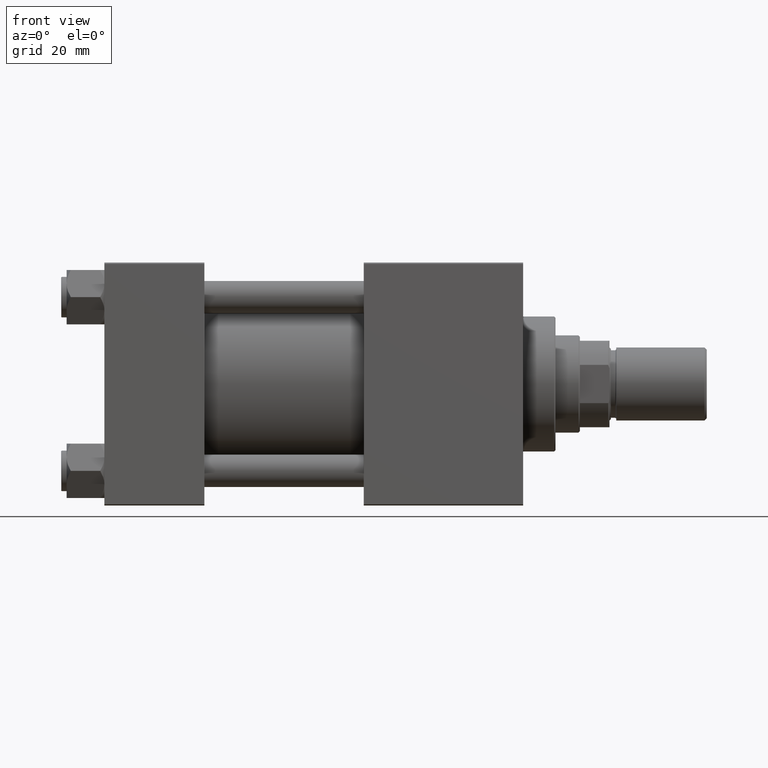
[diagram: clean part render]
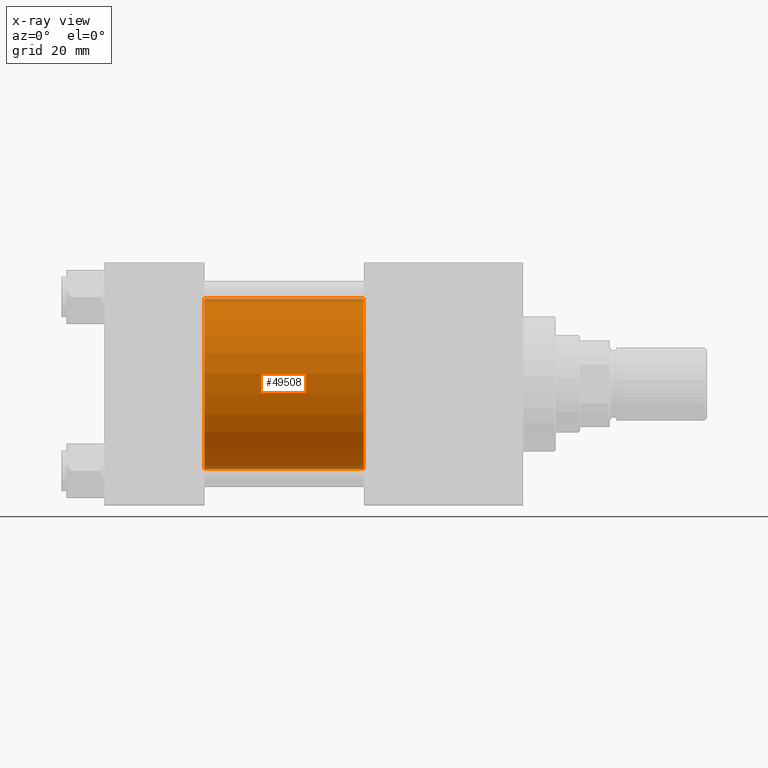
[diagram: x-ray — body ghosted, one internal face saturated and labeled with its STEP entity id]
A machine part, front view, then the same camera in x-ray: the body is ghosted and one INTERNAL B-rep face — a face not visible from any outside direction — is saturated and labeled: STEP entity #49508.
In plain terms, the highlighted cylindrical surface (partial cylindrical patch) has radius 31.5 mm, axis along (-1, -0, -0).
Its self-contained STEP definition (entity closure, byte-faithful):
#613 = DIRECTION ( 'NONE',  ( 0.000000000000000000, 0.000000000000000000, -1.000000000000000000 ) ) ;
#1902 = VERTEX_POINT ( 'NONE', #22722 ) ;
#6375 = DIRECTION ( 'NONE',  ( 0.000000000000000000, 0.000000000000000000, 1.000000000000000000 ) ) ;
#6842 = EDGE_CURVE ( 'NONE', #1902, #13217, #39065, .T. ) ;
#6873 = DIRECTION ( 'NONE',  ( -1.000000000000000000, -0.000000000000000000, -0.000000000000000000 ) ) ;
#7767 = DIRECTION ( 'NONE',  ( -1.000000000000000000, -0.000000000000000000, -0.000000000000000000 ) ) ;
#8389 = VECTOR ( 'NONE', #7767, 1000.000000000000000 ) ;
#9734 = CARTESIAN_POINT ( 'NONE',  ( 96.00000000000000000, -2.602085213965210642E-15, 31.50000000000000000 ) ) ;
#10476 = VERTEX_POINT ( 'NONE', #9734 ) ;
#11221 = AXIS2_PLACEMENT_3D ( 'NONE', #24149, #35948, #15431 ) ;
#12508 = CARTESIAN_POINT ( 'NONE',  ( 37.00000000000000000, 1.255552203348951850E-15, -31.50000000000000000 ) ) ;
#12773 = LINE ( 'NONE', #28419, #48934 ) ;
#13188 = ORIENTED_EDGE ( 'NONE', *, *, #6842, .T. ) ;
#13217 = VERTEX_POINT ( 'NONE', #12508 ) ;
#14520 = CIRCLE ( 'NONE', #11221, 31.50000000000000000 ) ;
#15431 = DIRECTION ( 'NONE',  ( 0.000000000000000000, 0.000000000000000000, -1.000000000000000000 ) ) ;
#15470 = DIRECTION ( 'NONE',  ( 1.000000000000000000, 0.000000000000000000, 0.000000000000000000 ) ) ;
#17776 = CIRCLE ( 'NONE', #28298, 31.50000000000000000 ) ;
#17951 = VERTEX_POINT ( 'NONE', #43074 ) ;
#18668 = CYLINDRICAL_SURFACE ( 'NONE', #22720, 31.50000000000000000 ) ;
#19062 = CARTESIAN_POINT ( 'NONE',  ( 96.00000000000000000, 1.255552203348951850E-15, -31.50000000000000000 ) ) ;
#21955 = EDGE_CURVE ( 'NONE', #10476, #1902, #17776, .T. ) ;
#22720 = AXIS2_PLACEMENT_3D ( 'NONE', #41736, #6873, #6375 ) ;
#22722 = CARTESIAN_POINT ( 'NONE',  ( 96.00000000000000000, 1.255552203348951850E-15, -31.50000000000000000 ) ) ;
#23684 = CARTESIAN_POINT ( 'NONE',  ( 96.00000000000000000, -2.602085213965210642E-15, 0.000000000000000000 ) ) ;
#24026 = EDGE_LOOP ( 'NONE', ( #29755, #13188, #33263, #39902 ) ) ;
#24149 = CARTESIAN_POINT ( 'NONE',  ( 37.00000000000000000, -2.602085213965210642E-15, 0.000000000000000000 ) ) ;
#24578 = DIRECTION ( 'NONE',  ( -1.000000000000000000, -0.000000000000000000, -0.000000000000000000 ) ) ;
#26116 = FACE_OUTER_BOUND ( 'NONE', #24026, .T. ) ;
#27830 = EDGE_CURVE ( 'NONE', #10476, #17951, #12773, .T. ) ;
#28298 = AXIS2_PLACEMENT_3D ( 'NONE', #23684, #15470, #613 ) ;
#28419 = CARTESIAN_POINT ( 'NONE',  ( 96.00000000000000000, -2.602085213965210642E-15, 31.50000000000000000 ) ) ;
#29755 = ORIENTED_EDGE ( 'NONE', *, *, #21955, .T. ) ;
#33263 = ORIENTED_EDGE ( 'NONE', *, *, #48681, .F. ) ;
#35948 = DIRECTION ( 'NONE',  ( 1.000000000000000000, 0.000000000000000000, 0.000000000000000000 ) ) ;
#39065 = LINE ( 'NONE', #19062, #8389 ) ;
#39902 = ORIENTED_EDGE ( 'NONE', *, *, #27830, .F. ) ;
#41736 = CARTESIAN_POINT ( 'NONE',  ( 96.00000000000000000, -2.602085213965210642E-15, 0.000000000000000000 ) ) ;
#43074 = CARTESIAN_POINT ( 'NONE',  ( 37.00000000000000000, -2.602085213965210642E-15, 31.50000000000000000 ) ) ;
#48681 = EDGE_CURVE ( 'NONE', #17951, #13217, #14520, .T. ) ;
#48934 = VECTOR ( 'NONE', #24578, 1000.000000000000000 ) ;
#49508 = ADVANCED_FACE ( 'NONE', ( #26116 ), #18668, .F. ) ;